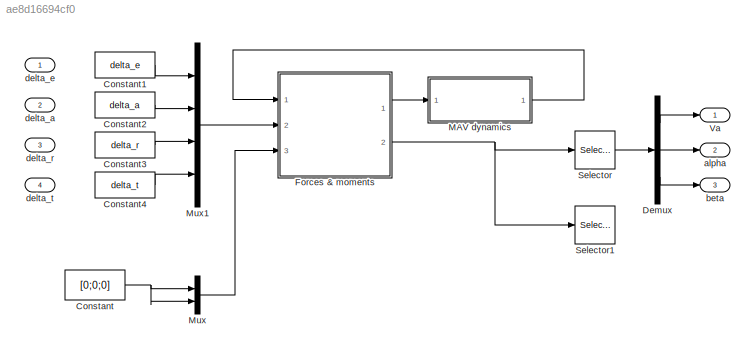
MODEL slx_ae8d16694cf0
KIND model
CONFIG AbsTol = auto
CONFIG FixedStep = auto
CONFIG MaxStep = auto
CONFIG MinStep = auto
CONFIG RelTol = 1e-3
CONFIG SampleTimeConstraint = Unconstrained
CONFIG Solver = VariableStepAuto
CONFIG SolverMode = Auto
CONFIG SolverName = VariableStepAuto
CONFIG StartTime = 0.0
CONFIG StopTime = 10
BLOCK [Constant] Constant
  Value = [0;0;0]
BLOCK [Constant] Constant1
  Value = delta_e
BLOCK [Constant] Constant2
  Value = delta_a
BLOCK [Constant] Constant3
  Value = delta_r
BLOCK [Constant] Constant4
  Value = delta_t
BLOCK [Demux] Demux
  DisplayOption = bar
  Outputs = 3
  Ports = [1, 3]
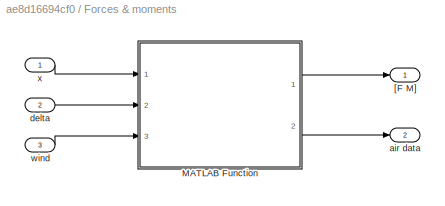
BLOCK [SubSystem] Forces & moments
  Ports = [3, 2]
  RequestExecContextInheritance = off
  Variant = off
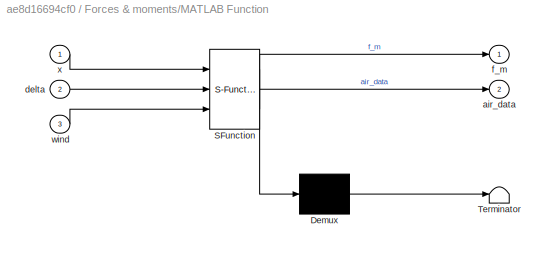
BLOCK [SubSystem] Forces & moments/MATLAB Function
  ErrorFcn = Stateflow.Translate.translate
  PermitHierarchicalResolution = ExplicitOnly
  Ports = [3, 2]
  RequestExecContextInheritance = off
  SFBlockType = MATLAB Function
  TreatAsAtomicUnit = on
  Variant = off
BLOCK [Demux] Forces & moments/MATLAB Function/ Demux 
  Outputs = 1
  Ports = [1, 1]
BLOCK [S-Function] Forces & moments/MATLAB Function/ SFunction 
  EnableBusSupport = on
  FunctionName = sf_sfun
  Parameters = P
  PortCounts = [3 3]
  Ports = [3, 3]
  SFunctionDeploymentMode = off
  Tag = Stateflow S-Function model 2
BLOCK [Terminator] Forces & moments/MATLAB Function/ Terminator 
BLOCK [Outport] Forces & moments/MATLAB Function/air_data
  IconDisplay = Port number
  Port = 2
BLOCK [Inport] Forces & moments/MATLAB Function/delta
  IconDisplay = Port number
  Port = 2
BLOCK [Outport] Forces & moments/MATLAB Function/f_m
  IconDisplay = Port number
BLOCK [Inport] Forces & moments/MATLAB Function/wind
  IconDisplay = Port number
  Port = 3
BLOCK [Inport] Forces & moments/MATLAB Function/x
  IconDisplay = Port number
BLOCK [Outport] Forces & moments/[F M]
  IconDisplay = Port number
BLOCK [Outport] Forces & moments/air data
  IconDisplay = Port number
  Port = 2
BLOCK [Inport] Forces & moments/delta
  IconDisplay = Port number
  Port = 2
BLOCK [Inport] Forces & moments/wind
  IconDisplay = Port number
  Port = 3
BLOCK [Inport] Forces & moments/x
  IconDisplay = Port number
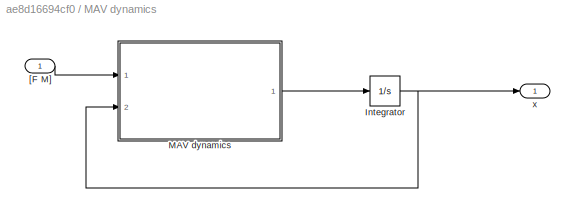
BLOCK [SubSystem] MAV dynamics
  Ports = [1, 1]
  RequestExecContextInheritance = off
  Variant = off
BLOCK [Integrator] MAV dynamics/Integrator
  InitialCondition = X_trim
  Ports = [1, 1]
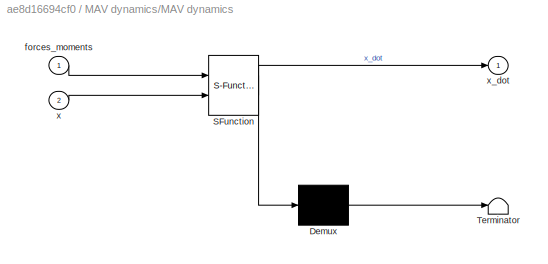
BLOCK [SubSystem] MAV dynamics/MAV dynamics
  ErrorFcn = Stateflow.Translate.translate
  PermitHierarchicalResolution = ExplicitOnly
  Ports = [2, 1]
  RequestExecContextInheritance = off
  SFBlockType = MATLAB Function
  TreatAsAtomicUnit = on
  Variant = off
BLOCK [Demux] MAV dynamics/MAV dynamics/ Demux 
  Outputs = 1
  Ports = [1, 1]
BLOCK [S-Function] MAV dynamics/MAV dynamics/ SFunction 
  EnableBusSupport = on
  FunctionName = sf_sfun
  Parameters = P
  PortCounts = [2 2]
  Ports = [2, 2]
  SFunctionDeploymentMode = off
  Tag = Stateflow S-Function model 1
BLOCK [Terminator] MAV dynamics/MAV dynamics/ Terminator 
BLOCK [Inport] MAV dynamics/MAV dynamics/forces_moments
  IconDisplay = Port number
BLOCK [Inport] MAV dynamics/MAV dynamics/x
  IconDisplay = Port number
  Port = 2
BLOCK [Outport] MAV dynamics/MAV dynamics/x_dot
  IconDisplay = Port number
BLOCK [Inport] MAV dynamics/[F M]
  IconDisplay = Port number
  OutMax = [6]
  OutMin = [6]
BLOCK [Outport] MAV dynamics/x
  IconDisplay = Port number
BLOCK [Mux] Mux
  DisplayOption = bar
  Inputs = 2
  Ports = [2, 1]
BLOCK [Mux] Mux1
  DisplayOption = bar
  Ports = [4, 1]
BLOCK [Selector] Selector
  IndexOptions = Index vector (dialog)
  Indices = [1 2 3]
  InputPortWidth = 6
  OutputSizes = 1
  Ports = [1, 1]
BLOCK [Selector] Selector1
  IndexOptions = Index vector (dialog)
  Indices = [4 5 6]
  InputPortWidth = 6
  OutputSizes = 1
  Ports = [1, 1]
BLOCK [Outport] Va
  IconDisplay = Port number
BLOCK [Outport] alpha
  IconDisplay = Port number
  Port = 2
BLOCK [Outport] beta
  IconDisplay = Port number
  Port = 3
BLOCK [Inport] delta_a
  IconDisplay = Port number
  Port = 2
BLOCK [Inport] delta_e
  IconDisplay = Port number
BLOCK [Inport] delta_r
  IconDisplay = Port number
  Port = 3
BLOCK [Inport] delta_t
  IconDisplay = Port number
  Port = 4
LINE Constant1:1 -> Mux1:1
LINE Constant2:1 -> Mux1:2
LINE Constant3:1 -> Mux1:3
LINE Constant4:1 -> Mux1:4
NET Constant:1 -> Mux:1, Mux:2
LINE Demux:1 -> Va:1
LINE Demux:2 -> alpha:1
LINE Demux:3 -> beta:1
LINE Forces & moments/MATLAB Function:1 -> Forces & moments/[F M]:1
LINE Forces & moments/MATLAB Function:2 -> Forces & moments/air data:1
LINE Forces & moments/delta:1 -> Forces & moments/MATLAB Function:2
LINE Forces & moments/wind:1 -> Forces & moments/MATLAB Function:3
LINE Forces & moments/x:1 -> Forces & moments/MATLAB Function:1
LINE Forces & moments:1 -> MAV dynamics:1
NET Forces & moments:2 -> Selector1:1, Selector:1
NET MAV dynamics/Integrator:1 -> MAV dynamics/MAV dynamics:2, MAV dynamics/x:1
LINE MAV dynamics/MAV dynamics:1 -> MAV dynamics/Integrator:1
LINE MAV dynamics/[F M]:1 -> MAV dynamics/MAV dynamics:1
LINE MAV dynamics:1 -> Forces & moments:1
LINE Mux1:1 -> Forces & moments:2
LINE Mux:1 -> Forces & moments:3
LINE Selector:1 -> Demux:1
note: NET lines group one-source signal fan-out (src -> all destinations, sorted); 1:1 wires keep LINE
CHART MAV dynamics/MAV dynamics states=1 transitions=1
  STATE_LABEL 'eML_blk_kernel()'
  STATE_LABEL 'SCRIPT:\nfunction x_dot = fcn(forces_moments, x, P)\n\n    x_dot = mav_dynamics(forces_moments, x, P);\n    \nend'
CHART Forces & moments/MATLAB Function states=1 transitions=1
  STATE_LABEL 'eML_blk_kernel()'
  STATE_LABEL 'SCRIPT:\nfunction [f_m, air_data] = fcn(x, delta, wind, P)\n\n    output = forces_moments(x, delta, wind, P);\n    \n    f_m = output(1:6);\n    air_data = output(7:12);\n\nend'
